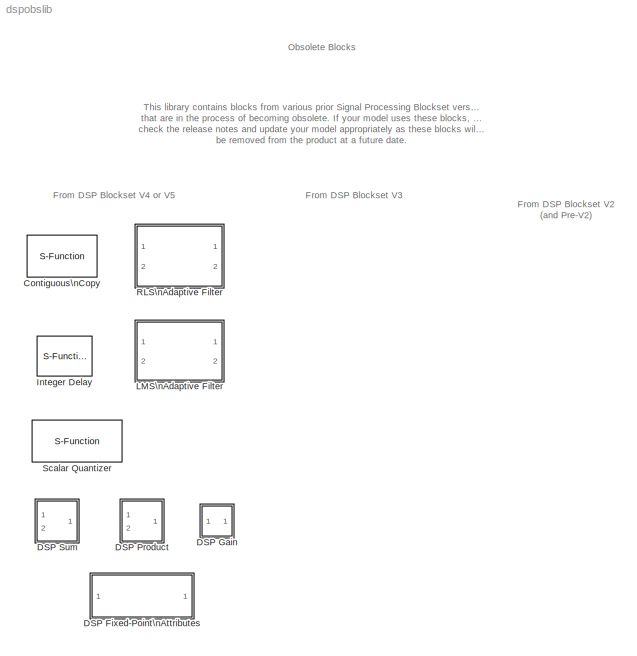
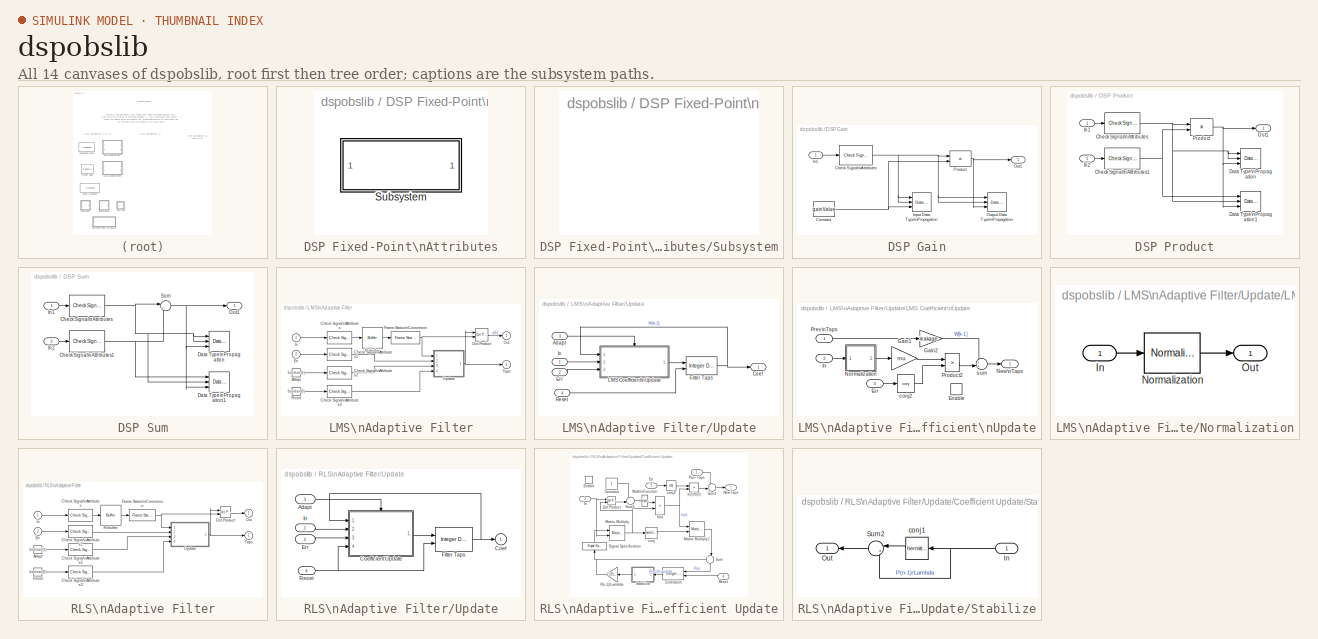
[diagram: thumbnail index - all 14 canvases of the model, root first then tree order]
MODEL dspobslib
KIND library
BLOCK [S-Function] Contiguous\nCopy
  FunctionName = sdspcontig2
  MaskDescription = Create a contiguous copy of input data.  For use with blocks that only accept contiguous data during simulation or code generation.
  MaskDisplay = disp('Contiguous\\nCopy');
  MaskHelp = web(dspbhelp);
  MaskIconFrame = on
  MaskIconOpaque = on
  MaskIconRotate = none
  MaskIconUnits = autoscale
  MaskType = Contiguous Copy
  Ports = [1, 1]
BLOCK [SubSystem] DSP Fixed-Point\nAttributes
  CopyFcn = dspFixptManager('addController');\n
  DeleteFcn = dspFixptManager('removeController');
  MaskCallbackString = dspblkFPA('out');|||dspblkFPA('acc');|||dspblkFPA('po');|||dspblkFPA('mem');|||dspblkFPA('misc');||
  MaskDescription = Sets fixed-point parameters on a model-wide (if at root level) or subsystem-wide basis.  Blocks that have 'Inherit from master dialog' will use the parameters specified here unless overridden at a lower level.
  MaskDisplay = disp('DSP Fixed-Point\\nAttributes','horizontalalign','center')\n
  MaskEnableString = on,on,on,on,on,on,on,on,on,on,on,on,on,on,on
  MaskHelp = web(dspbhelp);
  MaskIconFrame = off
  MaskIconOpaque = on
  MaskIconRotate = none
  MaskIconUnits = autoscale
  MaskPromptString = Where from (out)?|Word length:|Fraction length:|Where from (acc)?|Word length:|Fraction length:|Where from (po)?|Word length:|Fraction length:|Where from (mem)?|Word length:|Fraction length:|Where from (misc)?|Round integer calculations towards:|Saturate on integer overflow
  MaskSelfModifiable = on
  MaskStyleString = popup(Local|Inherit),edit,edit,popup(Local|Inherit),edit,edit,popup(Local|Inherit),edit,edit,popup(Local|Inherit),edit,edit,popup(Local|Inherit),popup(Floor|Nearest),checkbox
  MaskTabNameString = ,,,,,,,,,,,,,,
  MaskToolTipString = on,on,on,on,on,on,on,on,on,on,on,on,on,on,on
  MaskTunableValueString = off,off,off,off,off,off,off,off,off,off,off,off,off,off,off
  MaskType = DSP Fixed-Point Attributes
  MaskValueString = Inherit|16|15|Inherit|32|30|Inherit|32|30|Inherit|16|15|Inherit|Floor|off
  MaskVarAliasString = ,,,,,,,,,,,,,,
  MaskVariables = outputSource=@1;outputWordLength=@2;outputFracLength=@3;accumSource=@4;accumWordLength=@5;accumFracLength=@6;prodOutputSource=@7;prodOutputWordLength=@8;prodOutputFracLength=@9;memorySource=@10;memoryWordLength=@11;memoryFracLength=@12;miscSource=@13;roundingMode=@14;overflowMode=@15;
  MaskVisibilityString = on,off,off,on,off,off,on,off,off,on,off,off,on,off,off
  ModelCloseFcn = dspFixptManager('closeModel');\n
  NameChangeFcn = dspFixptManager('changeName');\n
  OpenFcn = dspFixptManager('openUI');
  Ports = []
  TreatAsAtomicUnit = off
  UndoDeleteFcn = dspFixptManager('addController');\n
BLOCK [SubSystem] DSP Fixed-Point\nAttributes/Subsystem
  MaskDisplay = disp(' ')
  MaskIconFrame = off
  MaskIconOpaque = on
  MaskIconRotate = none
  MaskIconUnits = autoscale
  Ports = []
  TreatAsAtomicUnit = off
BLOCK [SubSystem] DSP Gain
  MaskCallbackString = |dspblkdspgain;|dspblkdspgain;|dspblkdspgain;|||dspblkdspgain;|||dspblkdspgain;|dspblkdspgain;
  MaskDescription = Apply element-wise gain to input. Any fixed-point settings are ignored for floating-point inputs.
  MaskDisplay = text(0.309,0.5,iconStr,'horizontalalignment','center')\nplot([0,0],[0,1]);\nplot([0,1],[0,0.5]);\nplot([0,1],[1,0.5]);\n
  MaskEnableString = on,on,on,on,on,on,on,on,on,on,on
  MaskHelp = web(dspbhelp);
  MaskIconFrame = off
  MaskIconOpaque = on
  MaskIconRotate = port
  MaskIconUnits = normalized
  MaskInitialization = iconStr = dspblkdspgain('icon');\ndspblkdspgain('init');
  MaskPromptString = Gain value:|------- Show additional parameters --------|Allow overrides from DSP Fixed-Point Attributes blocks|Fixed-point gain attributes:|Gain word length:|Gain fraction length:|Fixed-point output attributes:|Output word length:|Output fraction length:|Round integer calculations toward:|Saturate on integer overflow
  MaskSelfModifiable = on
  MaskStyleString = edit,checkbox,checkbox,popup(Same as input|User-defined),edit,edit,popup(Same as input|User-defined),edit,edit,popup(Floor|Nearest),checkbox
  MaskTabNameString = ,,,,,,,,,,
  MaskToolTipString = on,on,on,on,on,on,on,on,on,on,on
  MaskTunableValueString = off,off,off,off,off,off,off,off,off,off,off
  MaskType = DSP Gain
  MaskValueString = 1|off|on|Same as input|16|15|Same as input|32|30|Floor|off
  MaskVarAliasString = ,,,,,,outputMode,outputWordLength,outputFracLength,,
  MaskVariables = gainValue=@1;additionalParams=@2;allowOverrides=@3;gainMode=@4;gainWordLength=@5;gainFracLength=@6;prodOutputMode=@7;prodOutputWordLength=@8;prodOutputFracLength=@9;roundingMode=@10;overflowMode=@11;
  MaskVisibilityString = on,on,off,off,off,off,off,off,off,off,off
  Ports = [1, 1]
  TreatAsAtomicUnit = off
BLOCK [Reference] DSP Gain/Check Signal\nAttributes  REF=dspsigattribs/Check Signal\nAttributes
  Complexity = Ignore
  DatatypeCheckMethod = Is...
  DatatypeGeneral = Boolean
  Dimensions = 1-D
  DimsCheckMethod = Ignore
  DtypeFixedSpecific = Any fixed-point
  DtypeFloatSpecific = Any floating-point
  DtypeIntSpecific = Any integer
  Frame = Ignore
  Ports = [1, 1]
  SampleMode = Ignore
  SigAttribCheckMethod = Matches attributes exactly
  SourceBlock = dspsigattribs/Check Signal\nAttributes
  SourceType = Check Signal Attributes
BLOCK [Constant] DSP Gain/Constant
  OutDataTypeMode = Inherit via back propagation
  Value = gainValue
  VectorParams1D = off
BLOCK [Inport] DSP Gain/In1
  IconDisplay = Port number
BLOCK [Reference] DSP Gain/Input Data Type\nPropagation  REF=simulink/Signal\nAttributes/Data Type\nPropagation
  BiasAdd = 0
  BiasBase = Bias1
  BiasMult = 0
  IfRefDouble = double
  IfRefSingle = single
  IsSigned = IsSigned1 or IsSigned2
  NumBitsAdd = 0
  NumBitsAllowFinal = 1:128
  NumBitsBase = NumBits1
  NumBitsMult = 1
  Ports = [3]
  PropDataType = sfix(16)
  PropDataTypeMode = Inherit via propagation rule
  PropScaling = 2^-10
  PropScalingMode = Inherit via propagation rule
  SlopeAdd = 0
  SlopeBase = Slope1
  SlopeMult = 1
  SourceBlock = simulink/Signal\nAttributes/Data Type\nPropagation
  SourceType = Data Type Propagation
  ValuesUsedBestPrec = [5 -7]
BLOCK [Outport] DSP Gain/Out1
  BusOutputAsStruct = off
  IconDisplay = Port number
BLOCK [Reference] DSP Gain/Output Data Type\nPropagation  REF=simulink/Signal\nAttributes/Data Type\nPropagation
  BiasAdd = 0
  BiasBase = Bias1
  BiasMult = 0
  IfRefDouble = double
  IfRefSingle = single
  IsSigned = IsSigned1 or IsSigned2
  NumBitsAdd = 0
  NumBitsAllowFinal = 1:128
  NumBitsBase = NumBits1
  NumBitsMult = 1
  Ports = [3]
  PropDataType = sfix(16)
  PropDataTypeMode = Inherit via propagation rule
  PropScaling = 2^-10
  PropScalingMode = Inherit via propagation rule
  SlopeAdd = 0
  SlopeBase = Slope1
  SlopeMult = 1
  SourceBlock = simulink/Signal\nAttributes/Data Type\nPropagation
  SourceType = Data Type Propagation
  ValuesUsedBestPrec = [5 -7]
BLOCK [Product] DSP Gain/Product
  InputSameDT = off
  OutDataTypeMode = Inherit via back propagation
  Ports = [2, 1]
  RndMeth = Floor
  SaturateOnIntegerOverflow = off
BLOCK [SubSystem] DSP Product
  MaskCallbackString = dspblksummult('Product');|dspblksummult('Product');|||dspblksummult('Product');|dspblksummult('Product');
  MaskDescription = Perform element-wise multiplication on two inputs. Any fixed-point settings are ignored for floating-point inputs.
  MaskDisplay = plot((0.5+cos([0:3:360]*pi/180)/3),(0.5+sin([0:3:360]*pi/180)/3))\nplot([.35,.65],[.35,.65])\nplot([.65,.35],[.35,.65])
  MaskEnableString = on,on,on,on,on,on
  MaskHelp = web(dspbhelp);
  MaskIconFrame = on
  MaskIconOpaque = on
  MaskIconRotate = none
  MaskIconUnits = normalized
  MaskInitialization = dspblksummult('init','Product')\ndspblksummult('update','Product')
  MaskPromptString = Allow overrides from DSP Fixed-Point Attributes blocks|Fixed-point output attributes:|Output word length:|Output fraction length:|Round integer calculations toward:|Saturate on integer overflow
  MaskSelfModifiable = on
  MaskStyleString = checkbox,popup(Same as first input|User-defined),edit,edit,popup(Floor|Nearest),checkbox
  MaskTabNameString = ,,,,,
  MaskToolTipString = on,on,on,on,on,on
  MaskTunableValueString = off,off,off,off,off,off
  MaskType = DSP Product
  MaskValueString = on|Same as first input|32|30|Floor|off
  MaskVarAliasString = ,outputMode,outputWordLength,outputFracLength,,
  MaskVariables = allowOverrides=@1;prodOutputMode=@2;prodOutputWordLength=@3;prodOutputFracLength=@4;roundingMode=@5;overflowMode=@6;
  MaskVisibilityString = on,on,off,off,on,on
  Ports = [2, 1]
  TreatAsAtomicUnit = off
BLOCK [Reference] DSP Product/Check Signal\nAttributes  REF=dspsigattribs/Check Signal\nAttributes
  Complexity = Ignore
  DatatypeCheckMethod = Is...
  DatatypeGeneral = Boolean
  Dimensions = 1-D
  DimsCheckMethod = Ignore
  DtypeFixedSpecific = Any fixed-point
  DtypeFloatSpecific = Any floating-point
  DtypeIntSpecific = Any integer
  Frame = Ignore
  Ports = [1, 1]
  SampleMode = Ignore
  SigAttribCheckMethod = Matches attributes exactly
  SourceBlock = dspsigattribs/Check Signal\nAttributes
  SourceType = Check Signal Attributes
BLOCK [Reference] DSP Product/Check Signal\nAttributes1  REF=dspsigattribs/Check Signal\nAttributes
  Complexity = Ignore
  DatatypeCheckMethod = Is...
  DatatypeGeneral = Boolean
  Dimensions = 1-D
  DimsCheckMethod = Ignore
  DtypeFixedSpecific = Any fixed-point
  DtypeFloatSpecific = Any floating-point
  DtypeIntSpecific = Any integer
  Frame = Ignore
  Ports = [1, 1]
  SampleMode = Ignore
  SigAttribCheckMethod = Matches attributes exactly
  SourceBlock = dspsigattribs/Check Signal\nAttributes
  SourceType = Check Signal Attributes
BLOCK [Reference] DSP Product/Data Type\nPropagation  REF=simulink/Signal\nAttributes/Data Type\nPropagation
  BiasAdd = 0
  BiasBase = Bias1
  BiasMult = 0
  IfRefDouble = double
  IfRefSingle = single
  IsSigned = IsSigned1 or IsSigned2
  NumBitsAdd = 0
  NumBitsAllowFinal = 1:128
  NumBitsBase = NumBits1
  NumBitsMult = 1
  Ports = [3]
  PropDataType = sfix(16)
  PropDataTypeMode = Inherit via propagation rule
  PropScaling = 2^-10
  PropScalingMode = Inherit via propagation rule
  SlopeAdd = 0
  SlopeBase = Slope1
  SlopeMult = 1
  SourceBlock = simulink/Signal\nAttributes/Data Type\nPropagation
  SourceType = Data Type Propagation
  ValuesUsedBestPrec = [5 -7]
BLOCK [Reference] DSP Product/Data Type\nPropagation1  REF=simulink/Signal\nAttributes/Data Type\nPropagation
  BiasAdd = 0
  BiasBase = Bias2
  BiasMult = 0
  IfRefDouble = double
  IfRefSingle = single
  IsSigned = IsSigned1 or IsSigned2
  NumBitsAdd = 0
  NumBitsAllowFinal = 1:128
  NumBitsBase = NumBits2
  NumBitsMult = 1
  Ports = [3]
  PropDataType = sfix(16)
  PropDataTypeMode = Inherit via propagation rule
  PropScaling = 2^-10
  PropScalingMode = Inherit via propagation rule
  SlopeAdd = 0
  SlopeBase = Slope2
  SlopeMult = 1
  SourceBlock = simulink/Signal\nAttributes/Data Type\nPropagation
  SourceType = Data Type Propagation
  ValuesUsedBestPrec = [5 -7]
BLOCK [Inport] DSP Product/In1
  IconDisplay = Port number
BLOCK [Inport] DSP Product/In2
  IconDisplay = Port number
  Port = 2
BLOCK [Outport] DSP Product/Out1
  BusOutputAsStruct = off
  IconDisplay = Port number
BLOCK [Product] DSP Product/Product
  InputSameDT = off
  OutDataTypeMode = Inherit via back propagation
  Ports = [2, 1]
  RndMeth = Floor
  SaturateOnIntegerOverflow = off
BLOCK [SubSystem] DSP Sum
  MaskCallbackString = dspblksummult('Sum');|dspblksummult('Sum');|||dspblksummult('Sum');|dspblksummult('Sum');
  MaskDescription = Sum two inputs. Any fixed-point settings are ignored for floating-point inputs.
  MaskDisplay = plot((0.5+cos([0:3:360]*pi/180)/3),(0.5+sin([0:3:360]*pi/180)/3))\nplot([.5,.5],[.35,.65])\nplot([.35,.65],[.5,.5])
  MaskEnableString = on,on,on,on,on,on
  MaskHelp = web(dspbhelp);
  MaskIconFrame = on
  MaskIconOpaque = on
  MaskIconRotate = none
  MaskIconUnits = normalized
  MaskInitialization = dspblksummult('init','Sum')\ndspblksummult('update','Sum')
  MaskPromptString = Allow overrides from DSP Fixed-Point Attributes blocks|Fixed-point output attributes:|Output word length:|Output fraction length:|Round integer calculations toward:|Saturate on integer overflow
  MaskSelfModifiable = on
  MaskStyleString = checkbox,popup(Same as first input|User-defined),edit,edit,popup(Floor|Nearest),checkbox
  MaskTabNameString = ,,,,,
  MaskToolTipString = on,on,on,on,on,on
  MaskTunableValueString = off,off,off,off,off,off
  MaskType = DSP Sum
  MaskValueString = on|Same as first input|32|30|Floor|off
  MaskVarAliasString = ,outputMode,outputWordLength,outputFracLength,,
  MaskVariables = allowOverrides=@1;accumMode=@2;accumWordLength=@3;accumFracLength=@4;roundingMode=@5;overflowMode=@6;
  MaskVisibilityString = on,on,off,off,on,on
  Ports = [2, 1]
  TreatAsAtomicUnit = off
BLOCK [Reference] DSP Sum/Check Signal\nAttributes  REF=dspsigattribs/Check Signal\nAttributes
  Complexity = Ignore
  DatatypeCheckMethod = Is...
  DatatypeGeneral = Boolean
  Dimensions = 1-D
  DimsCheckMethod = Ignore
  DtypeFixedSpecific = Any fixed-point
  DtypeFloatSpecific = Any floating-point
  DtypeIntSpecific = Any integer
  Frame = Ignore
  Ports = [1, 1]
  SampleMode = Ignore
  SigAttribCheckMethod = Matches attributes exactly
  SourceBlock = dspsigattribs/Check Signal\nAttributes
  SourceType = Check Signal Attributes
BLOCK [Reference] DSP Sum/Check Signal\nAttributes1  REF=dspsigattribs/Check Signal\nAttributes
  Complexity = Ignore
  DatatypeCheckMethod = Is...
  DatatypeGeneral = Boolean
  Dimensions = 1-D
  DimsCheckMethod = Ignore
  DtypeFixedSpecific = Any fixed-point
  DtypeFloatSpecific = Any floating-point
  DtypeIntSpecific = Any integer
  Frame = Ignore
  Ports = [1, 1]
  SampleMode = Ignore
  SigAttribCheckMethod = Matches attributes exactly
  SourceBlock = dspsigattribs/Check Signal\nAttributes
  SourceType = Check Signal Attributes
BLOCK [Reference] DSP Sum/Data Type\nPropagation  REF=simulink/Signal\nAttributes/Data Type\nPropagation
  BiasAdd = 0
  BiasBase = Bias1
  BiasMult = 0
  IfRefDouble = double
  IfRefSingle = single
  IsSigned = IsSigned1 or IsSigned2
  NumBitsAdd = 0
  NumBitsAllowFinal = 1:128
  NumBitsBase = NumBits1
  NumBitsMult = 1
  Ports = [3]
  PropDataType = sfix(16)
  PropDataTypeMode = Inherit via propagation rule
  PropScaling = 2^-10
  PropScalingMode = Inherit via propagation rule
  SlopeAdd = 0
  SlopeBase = Slope1
  SlopeMult = 1
  SourceBlock = simulink/Signal\nAttributes/Data Type\nPropagation
  SourceType = Data Type Propagation
  ValuesUsedBestPrec = [5 -7]
BLOCK [Reference] DSP Sum/Data Type\nPropagation1  REF=simulink/Signal\nAttributes/Data Type\nPropagation
  BiasAdd = 0
  BiasBase = Bias2
  BiasMult = 0
  IfRefDouble = double
  IfRefSingle = single
  IsSigned = IsSigned1 or IsSigned2
  NumBitsAdd = 0
  NumBitsAllowFinal = 1:128
  NumBitsBase = NumBits2
  NumBitsMult = 1
  Ports = [3]
  PropDataType = sfix(16)
  PropDataTypeMode = Inherit via propagation rule
  PropScaling = 2^-10
  PropScalingMode = Inherit via propagation rule
  SlopeAdd = 0
  SlopeBase = Slope2
  SlopeMult = 1
  SourceBlock = simulink/Signal\nAttributes/Data Type\nPropagation
  SourceType = Data Type Propagation
  ValuesUsedBestPrec = [5 -7]
BLOCK [Inport] DSP Sum/In1
  IconDisplay = Port number
BLOCK [Inport] DSP Sum/In2
  IconDisplay = Port number
  Port = 2
BLOCK [Outport] DSP Sum/Out1
  BusOutputAsStruct = off
  IconDisplay = Port number
BLOCK [Sum] DSP Sum/Sum
  IconShape = round
  InputSameDT = off
  Inputs = |++
  OutDataTypeMode = Inherit via back propagation
  Ports = [2, 1]
  SaturateOnIntegerOverflow = off
BLOCK [S-Function] Integer Delay
  FunctionName = sdspdly2
  MaskCallbackString = ||
  MaskDescription = Delay discrete-time input by a fixed integer number of sample periods.
  MaskDisplay = text(0.42-dx, 0.4, 'z'); text(0.5-dx, 0.6, str);\nport_label('input',s.i1,s.i1s);\nport_label('input',s.i2,s.i2s);\n
  MaskEnableString = on,on,on
  MaskHelp = web(dspbhelp);
  MaskIconFrame = on
  MaskIconOpaque = on
  MaskIconRotate = none
  MaskIconUnits = normalized
  MaskInitialization = str = dspblkdly2('icon',&1,delay);\ndx = 0.01*length(str);\nreset = reset_popup-1;\nif (reset == 0)\n	s.i1 = 1; s.i1s = '';\n	s.i2 = 1; s.i2s = '';\nelse\n	s.i1 = 1; s.i1s = 'In';\n	s.i2 = 2; s.i2s = 'Rst';\nend\n
  MaskPromptString = Delay (samples):|Initial conditions:|Reset port:
  MaskSelfModifiable = on
  MaskStyleString = edit,edit,popup(None|Rising edge|Falling edge|Either edge|Non-zero sample)
  MaskTabNameString = ,,
  MaskToolTipString = on,on,on
  MaskTunableValueString = off,off,off
  MaskType = Integer Delay
  MaskValueString = 1|0|None
  MaskVarAliasString = ,,
  MaskVariables = delay=@1;ic=@2;reset_popup=@3;
  MaskVisibilityString = on,on,on
  Parameters = delay,ic,reset
  Ports = [1, 1]
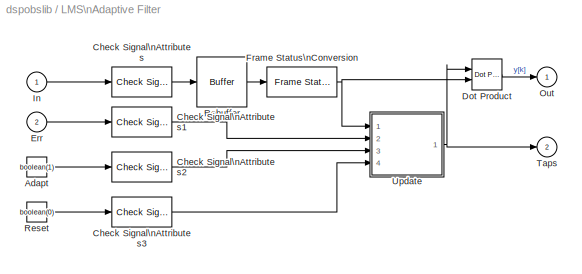
BLOCK [SubSystem] LMS\nAdaptive Filter
  MaskCallbackString = ||||||
  MaskDescription = Least mean-square (LMS) algorithm for adaptive FIR filtering of input signal.  Energy normalization may optionally be disabled.\n\nIf 'Adapt input' is checked and the Adapt signal is zero, the algorithm temporarily disables adaptation of the filter coefficients.  A non-zero signal enables filter adaptation.\n\nIf the 'Reset input' is enabled and the Reset signal transitions appropriately, the filt...<+54ch>
  MaskDisplay = disp(s);
  MaskEnableString = on,on,on,on,on,on,on
  MaskHelp = web(dspbhelp);
  MaskIconFrame = on
  MaskIconOpaque = off
  MaskIconRotate = none
  MaskIconUnits = autoscale
  MaskInitialization = if normalized, s='nLMS'; else s='LMS'; end\ndspblkadpt('init');\n
  MaskPromptString = FIR filter length:|Step-size, mu:|Initial value of filter taps:|Leakage factor (0 to 1):|Use normalization|Adapt input|Reset input:
  MaskSelfModifiable = on
  MaskStyleString = edit,edit,edit,edit,checkbox,checkbox,popup(None|Rising edge|Falling edge|Either edge|Non-zero sample)
  MaskTabNameString = ,,,,,,
  MaskToolTipString = on,on,on,on,on,on,on
  MaskTunableValueString = off,on,off,on,off,off,off
  MaskType = LMS Adaptive Filter
  MaskValueString = 32|.65|0.0|1.0|on|off|None
  MaskVarAliasString = ,,,,,,
  MaskVariables = n=@1;mu=@2;ic=@3;leakage=@4;normalized=@5;Adapt=@6;RstPort=@7;
  MaskVisibilityString = on,on,on,on,on,on,on
  Ports = [2, 2]
  TreatAsAtomicUnit = off
BLOCK [Constant] LMS\nAdaptive Filter/Adapt
  Value = boolean(1)
BLOCK [Reference] LMS\nAdaptive Filter/Check Signal\nAttributes  REF=dspsigattribs/Check Signal\nAttributes
  Complexity = Ignore
  DatatypeCheckMethod = Ignore
  DatatypeGeneral = Boolean
  Dimensions = Scalar (1-D or 2-D)
  DimsCheckMethod = Is...
  DtypeFixedSpecific = Any fixed-point
  DtypeFloatSpecific = Any floating-point
  DtypeIntSpecific = Any integer
  Frame = Sample-based
  Ports = [1, 1]
  SampleMode = Ignore
  SigAttribCheckMethod = Does not match attributes exactly
  SourceBlock = dspsigattribs/Check Signal\nAttributes
  SourceType = Check Signal Attributes
BLOCK [Reference] LMS\nAdaptive Filter/Check Signal\nAttributes1  REF=dspsigattribs/Check Signal\nAttributes
  Complexity = Ignore
  DatatypeCheckMethod = Ignore
  DatatypeGeneral = Boolean
  Dimensions = Scalar (1-D or 2-D)
  DimsCheckMethod = Is...
  DtypeFixedSpecific = Any fixed-point
  DtypeFloatSpecific = Any floating-point
  DtypeIntSpecific = Any integer
  Frame = Sample-based
  Ports = [1, 1]
  SampleMode = Ignore
  SigAttribCheckMethod = Does not match attributes exactly
  SourceBlock = dspsigattribs/Check Signal\nAttributes
  SourceType = Check Signal Attributes
BLOCK [Reference] LMS\nAdaptive Filter/Check Signal\nAttributes2  REF=dspsigattribs/Check Signal\nAttributes
  Complexity = Ignore
  DatatypeCheckMethod = Ignore
  DatatypeGeneral = Boolean
  Dimensions = Scalar (1-D or 2-D)
  DimsCheckMethod = Is...
  DtypeFixedSpecific = Any fixed-point
  DtypeFloatSpecific = Any floating-point
  DtypeIntSpecific = Any integer
  Frame = Sample-based
  Ports = [1, 1]
  SampleMode = Ignore
  SigAttribCheckMethod = Does not match attributes exactly
  SourceBlock = dspsigattribs/Check Signal\nAttributes
  SourceType = Check Signal Attributes
BLOCK [Reference] LMS\nAdaptive Filter/Check Signal\nAttributes3  REF=dspsigattribs/Check Signal\nAttributes
  Complexity = Ignore
  DatatypeCheckMethod = Ignore
  DatatypeGeneral = Boolean
  Dimensions = Scalar (1-D or 2-D)
  DimsCheckMethod = Is...
  DtypeFixedSpecific = Any fixed-point
  DtypeFloatSpecific = Any floating-point
  DtypeIntSpecific = Any integer
  Frame = Sample-based
  Ports = [1, 1]
  SampleMode = Ignore
  SigAttribCheckMethod = Does not match attributes exactly
  SourceBlock = dspsigattribs/Check Signal\nAttributes
  SourceType = Check Signal Attributes
BLOCK [Reference] LMS\nAdaptive Filter/Dot Product  REF=simulink/Math\nOperations/Dot Product
  Ports = [2, 1]
  SourceBlock = simulink/Math\nOperations/Dot Product
  SourceType = Dot Product
BLOCK [Inport] LMS\nAdaptive Filter/Err
  IconDisplay = Port number
  Port = 2
BLOCK [Reference] LMS\nAdaptive Filter/Frame Status\nConversion  REF=dspsigattribs/Frame Status\nConversion
  Ports = [1, 1]
  SourceBlock = dspsigattribs/Frame Status\nConversion
  SourceType = Frame Status Conversion
  growRefPort = off
  outframe = Sample-based
BLOCK [Inport] LMS\nAdaptive Filter/In
  IconDisplay = Port number
BLOCK [Outport] LMS\nAdaptive Filter/Out
  BusOutputAsStruct = off
  IconDisplay = Port number
  InitialOutput = 0
BLOCK [Reference] LMS\nAdaptive Filter/Rebuffer  REF=dspbuff3/Buffer
  N = n
  Ports = [1, 1]
  SourceBlock = dspbuff3/Buffer
  SourceType = Buffer
  V = n-1
  ic = 0
BLOCK [Constant] LMS\nAdaptive Filter/Reset
  Value = boolean(0)
BLOCK [Outport] LMS\nAdaptive Filter/Taps
  BusOutputAsStruct = off
  IconDisplay = Port number
  InitialOutput = 0
  Port = 2
BLOCK [SubSystem] LMS\nAdaptive Filter/Update
  Ports = [4, 1]
  TreatAsAtomicUnit = off
BLOCK [Inport] LMS\nAdaptive Filter/Update/Adapt
  IconDisplay = Port number
  Port = 3
BLOCK [Outport] LMS\nAdaptive Filter/Update/Coef
  BusOutputAsStruct = off
  IconDisplay = Port number
  InitialOutput = 0
BLOCK [Inport] LMS\nAdaptive Filter/Update/Err
  IconDisplay = Port number
  Port = 2
BLOCK [Reference] LMS\nAdaptive Filter/Update/Filter Taps  REF=dspobslib/Integer Delay
  Ports = [2, 1]
  SourceBlock = dspobslib/Integer Delay
  SourceType = Integer Delay
  delay = 1
  ic = ic
  reset_popup = Non-zero sample
BLOCK [Inport] LMS\nAdaptive Filter/Update/In
  IconDisplay = Port number
BLOCK [SubSystem] LMS\nAdaptive Filter/Update/LMS Coefficient\nUpdate
  Ports = [3, 1, 1]
  TreatAsAtomicUnit = on
BLOCK [EnablePort] LMS\nAdaptive Filter/Update/LMS Coefficient\nUpdate/Enable
  Ports = []
  ZeroCross = off
BLOCK [Inport] LMS\nAdaptive Filter/Update/LMS Coefficient\nUpdate/Err
  IconDisplay = Port number
  Port = 3
BLOCK [Gain] LMS\nAdaptive Filter/Update/LMS Coefficient\nUpdate/Gain1
  Gain = mu
BLOCK [Gain] LMS\nAdaptive Filter/Update/LMS Coefficient\nUpdate/Gain2
  Gain = leakage
BLOCK [Inport] LMS\nAdaptive Filter/Update/LMS Coefficient\nUpdate/In
  IconDisplay = Port number
  Port = 2
BLOCK [Outport] LMS\nAdaptive Filter/Update/LMS Coefficient\nUpdate/New\nTaps
  BusOutputAsStruct = off
  IconDisplay = Port number
  InitialOutput = ic
BLOCK [SubSystem] LMS\nAdaptive Filter/Update/LMS Coefficient\nUpdate/Normalization
  MaskCallbackString = |||
  MaskDescription = Configurable subsystem holding blocks which may be replaced by virtual short-circuits (muxes) when not needed.
  MaskEnableString = on,on,on,on
  MaskHelp = \n
  MaskIconFrame = on
  MaskIconOpaque = on
  MaskIconRotate = none
  MaskIconUnits = autoscale
  MaskInitialization = opts.name = oname; opts.src = osrc; opts.args = oargs;\ndspskipblk(gcb,opts,replace);\n
  MaskPromptString = Relative name of blocks to replace:|Simulink path to each source block:|Parameter/value pairs to each block:|Replace with short-circuit:
  MaskSelfModifiable = on
  MaskStyleString = edit,edit,edit,edit
  MaskTabNameString = ,,,
  MaskToolTipString = on,on,on,on
  MaskTunableValueString = off,off,off,off
  MaskType = Replaceable Contents
  MaskValueString = Normalization|dspmathops/Normalization|{'NormType','Squared 2-norm','Bias','1e-10'}|~normalized
  MaskVarAliasString = ,,,
  MaskVariables = oname=&1;osrc=&2;oargs=@3;replace=@4;
  MaskVisibilityString = on,on,on,on
  Ports = [1, 1]
  TreatAsAtomicUnit = off
BLOCK [Inport] LMS\nAdaptive Filter/Update/LMS Coefficient\nUpdate/Normalization/In
  IconDisplay = Port number
BLOCK [Reference] LMS\nAdaptive Filter/Update/LMS Coefficient\nUpdate/Normalization/Normalization  REF=dspmathops/Normalization
  Bias = 1e-10
  NormType = Squared 2-norm
  Ports = [1, 1]
  SourceBlock = dspmathops/Normalization
  SourceType = Normalization
BLOCK [Outport] LMS\nAdaptive Filter/Update/LMS Coefficient\nUpdate/Normalization/Out
  BusOutputAsStruct = off
  IconDisplay = Port number
  InitialOutput = 0
BLOCK [Inport] LMS\nAdaptive Filter/Update/LMS Coefficient\nUpdate/Prev\nTaps
  IconDisplay = Port number
BLOCK [Product] LMS\nAdaptive Filter/Update/LMS Coefficient\nUpdate/Product2
  Ports = [2, 1]
  RndMeth = Floor
BLOCK [Math] LMS\nAdaptive Filter/Update/LMS Coefficient\nUpdate/conj2
  Operator = conj
  Ports = [1, 1]
BLOCK [Sum] LMS\nAdaptive Filter/Update/LMS Coefficient\nUpdate/sum
  IconShape = round
  Inputs = ++|
  Ports = [2, 1]
BLOCK [Inport] LMS\nAdaptive Filter/Update/Reset
  IconDisplay = Port number
  Port = 4
BLOCK [SubSystem] RLS\nAdaptive Filter
  MaskCallbackString = |||||
  MaskDescription = Exponentially weighted recursive least-squares (RLS) algorithm for adaptive FIR filtering of input signal. \n\nIf 'Adapt input' is checked and the Adapt signal is zero, the algorithm temporarily disables adaptation of the filter coefficients.  A non-zero signal enables filter adaptation.\n\nIf the 'Reset input' is enabled and the Reset signal transitions appropriately, the filter coefficients are ...<+34ch>
  MaskDisplay = disp('RLS')
  MaskEnableString = on,on,on,on,on,on
  MaskHelp = web(dspbhelp);
  MaskIconFrame = on
  MaskIconOpaque = off
  MaskIconRotate = none
  MaskIconUnits = autoscale
  MaskInitialization = dspblkadpt('init');\n
  MaskPromptString = FIR filter length:|Memory weighting factor (0 to 1):|Initial value of filter taps:|Initial input variance estimate:|Adapt input|Reset input:
  MaskSelfModifiable = on
  MaskStyleString = edit,edit,edit,edit,checkbox,popup(None|Rising edge|Falling edge|Either edge|Non-zero sample)
  MaskTabNameString = ,,,,,
  MaskToolTipString = on,on,on,on,on,on
  MaskTunableValueString = off,on,off,off,off,off
  MaskType = RLS Adaptive Filter
  MaskValueString = 32|1.0|0.0|0.1|off|None
  MaskVarAliasString = ,,,,,
  MaskVariables = Ntaps=@1;Lambda=@2;ic=@3;phi0=@4;Adapt=@5;RstPort=@6;
  MaskVisibilityString = on,on,on,on,on,on
  Ports = [2, 2]
  TreatAsAtomicUnit = off
BLOCK [Constant] RLS\nAdaptive Filter/Adapt
  Value = boolean(1)
BLOCK [Reference] RLS\nAdaptive Filter/Check Signal\nAttributes  REF=dspsigattribs/Check Signal\nAttributes
  Complexity = Ignore
  DatatypeCheckMethod = Ignore
  DatatypeGeneral = Boolean
  Dimensions = Scalar (1-D or 2-D)
  DimsCheckMethod = Is...
  DtypeFixedSpecific = Any fixed-point
  DtypeFloatSpecific = Any floating-point
  DtypeIntSpecific = Any integer
  Frame = Sample-based
  Ports = [1, 1]
  SampleMode = Ignore
  SigAttribCheckMethod = Does not match attributes exactly
  SourceBlock = dspsigattribs/Check Signal\nAttributes
  SourceType = Check Signal Attributes
BLOCK [Reference] RLS\nAdaptive Filter/Check Signal\nAttributes1  REF=dspsigattribs/Check Signal\nAttributes
  Complexity = Ignore
  DatatypeCheckMethod = Ignore
  DatatypeGeneral = Boolean
  Dimensions = Scalar (1-D or 2-D)
  DimsCheckMethod = Is...
  DtypeFixedSpecific = Any fixed-point
  DtypeFloatSpecific = Any floating-point
  DtypeIntSpecific = Any integer
  Frame = Sample-based
  Ports = [1, 1]
  SampleMode = Ignore
  SigAttribCheckMethod = Does not match attributes exactly
  SourceBlock = dspsigattribs/Check Signal\nAttributes
  SourceType = Check Signal Attributes
BLOCK [Reference] RLS\nAdaptive Filter/Check Signal\nAttributes2  REF=dspsigattribs/Check Signal\nAttributes
  Complexity = Ignore
  DatatypeCheckMethod = Ignore
  DatatypeGeneral = Boolean
  Dimensions = Scalar (1-D or 2-D)
  DimsCheckMethod = Is...
  DtypeFixedSpecific = Any fixed-point
  DtypeFloatSpecific = Any floating-point
  DtypeIntSpecific = Any integer
  Frame = Sample-based
  Ports = [1, 1]
  SampleMode = Ignore
  SigAttribCheckMethod = Does not match attributes exactly
  SourceBlock = dspsigattribs/Check Signal\nAttributes
  SourceType = Check Signal Attributes
BLOCK [Reference] RLS\nAdaptive Filter/Check Signal\nAttributes3  REF=dspsigattribs/Check Signal\nAttributes
  Complexity = Ignore
  DatatypeCheckMethod = Ignore
  DatatypeGeneral = Boolean
  Dimensions = Scalar (1-D or 2-D)
  DimsCheckMethod = Is...
  DtypeFixedSpecific = Any fixed-point
  DtypeFloatSpecific = Any floating-point
  DtypeIntSpecific = Any integer
  Frame = Sample-based
  Ports = [1, 1]
  SampleMode = Ignore
  SigAttribCheckMethod = Does not match attributes exactly
  SourceBlock = dspsigattribs/Check Signal\nAttributes
  SourceType = Check Signal Attributes
BLOCK [Reference] RLS\nAdaptive Filter/Dot Product  REF=simulink/Math\nOperations/Dot Product
  Ports = [2, 1]
  SourceBlock = simulink/Math\nOperations/Dot Product
  SourceType = Dot Product
BLOCK [Inport] RLS\nAdaptive Filter/Err
  IconDisplay = Port number
  Port = 2
BLOCK [Reference] RLS\nAdaptive Filter/Frame Status\nConversion  REF=dspsigattribs/Frame Status\nConversion
  Ports = [1, 1]
  SourceBlock = dspsigattribs/Frame Status\nConversion
  SourceType = Frame Status Conversion
  growRefPort = off
  outframe = Sample-based
BLOCK [Inport] RLS\nAdaptive Filter/In
  IconDisplay = Port number
BLOCK [Outport] RLS\nAdaptive Filter/Out
  BusOutputAsStruct = off
  IconDisplay = Port number
  InitialOutput = 0
BLOCK [Reference] RLS\nAdaptive Filter/Rebuffer  REF=dspbuff3/Buffer
  N = Ntaps
  Ports = [1, 1]
  SourceBlock = dspbuff3/Buffer
  SourceType = Buffer
  V = Ntaps-1
  ic = 0
BLOCK [Constant] RLS\nAdaptive Filter/Reset
  Value = boolean(0)
BLOCK [Outport] RLS\nAdaptive Filter/Taps
  BusOutputAsStruct = off
  IconDisplay = Port number
  InitialOutput = 0
  Port = 2
BLOCK [SubSystem] RLS\nAdaptive Filter/Update
  Ports = [4, 1]
  TreatAsAtomicUnit = off
BLOCK [Inport] RLS\nAdaptive Filter/Update/Adapt
  IconDisplay = Port number
  Port = 3
BLOCK [Outport] RLS\nAdaptive Filter/Update/Coef
  BusOutputAsStruct = off
  IconDisplay = Port number
  InitialOutput = 0
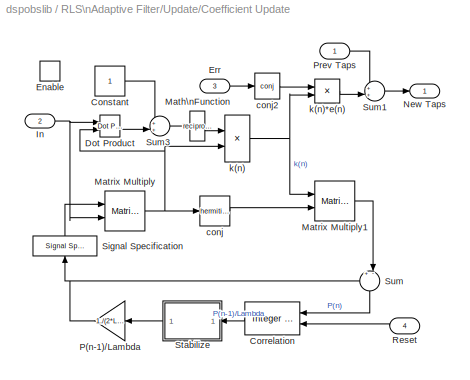
BLOCK [SubSystem] RLS\nAdaptive Filter/Update/Coefficient Update
  Ports = [4, 1, 1]
  TreatAsAtomicUnit = on
BLOCK [Constant] RLS\nAdaptive Filter/Update/Coefficient Update/Constant
  OutDataTypeMode = Inherit via back propagation
BLOCK [Reference] RLS\nAdaptive Filter/Update/Coefficient Update/Correlation  REF=dspobslib/Integer Delay
  Ports = [2, 1]
  SourceBlock = dspobslib/Integer Delay
  SourceType = Integer Delay
  delay = 1
  ic = eye(Ntaps)./phi0
  reset_popup = Either edge
BLOCK [Reference] RLS\nAdaptive Filter/Update/Coefficient Update/Dot Product  REF=simulink/Math\nOperations/Dot Product
  Ports = [2, 1]
  SourceBlock = simulink/Math\nOperations/Dot Product
  SourceType = Dot Product
BLOCK [EnablePort] RLS\nAdaptive Filter/Update/Coefficient Update/Enable
  Ports = []
  ZeroCross = off
BLOCK [Inport] RLS\nAdaptive Filter/Update/Coefficient Update/Err
  IconDisplay = Port number
  Port = 3
BLOCK [Inport] RLS\nAdaptive Filter/Update/Coefficient Update/In
  IconDisplay = Port number
  Port = 2
BLOCK [Math] RLS\nAdaptive Filter/Update/Coefficient Update/Math\nFunction
  Operator = reciprocal
  Ports = [1, 1]
BLOCK [Reference] RLS\nAdaptive Filter/Update/Coefficient Update/Matrix Multiply  REF=dspmtrx3/Matrix Multiply
  OptimizationLevel = None
  Ports = [2, 1]
  SourceBlock = dspmtrx3/Matrix Multiply
  SourceType = Matrix Multiply
  numInputPorts = 2
BLOCK [Reference] RLS\nAdaptive Filter/Update/Coefficient Update/Matrix Multiply1  REF=dspmtrx3/Matrix Multiply
  OptimizationLevel = None
  Ports = [2, 1]
  SourceBlock = dspmtrx3/Matrix Multiply
  SourceType = Matrix Multiply
  numInputPorts = 2
BLOCK [Outport] RLS\nAdaptive Filter/Update/Coefficient Update/New Taps
  BusOutputAsStruct = off
  IconDisplay = Port number
  InitialOutput = ic
BLOCK [Gain] RLS\nAdaptive Filter/Update/Coefficient Update/P(n-1)//Lambda
  Gain = 1./(2*Lambda)
BLOCK [Inport] RLS\nAdaptive Filter/Update/Coefficient Update/Prev Taps
  IconDisplay = Port number
BLOCK [Inport] RLS\nAdaptive Filter/Update/Coefficient Update/Reset
  IconDisplay = Port number
  Port = 4
BLOCK [Reference] RLS\nAdaptive Filter/Update/Coefficient Update/Signal Specification  REF=simulink/Signal\nAttributes/Signal Specification
  D = [Ntaps Ntaps]
  DataType = auto
  OutDataType = sfix(16)
  OutScaling = 2^0
  Ports = [1, 1]
  SamplingMode = auto
  SignalType = auto
  SourceBlock = simulink/Signal\nAttributes/Signal Specification
  SourceType = Signal Specification
  Ts = -1
BLOCK [SubSystem] RLS\nAdaptive Filter/Update/Coefficient Update/Stabilize
  Ports = [1, 1]
  TreatAsAtomicUnit = off
BLOCK [Inport] RLS\nAdaptive Filter/Update/Coefficient Update/Stabilize/In
  IconDisplay = Port number
BLOCK [Outport] RLS\nAdaptive Filter/Update/Coefficient Update/Stabilize/Out
  BusOutputAsStruct = off
  IconDisplay = Port number
BLOCK [Sum] RLS\nAdaptive Filter/Update/Coefficient Update/Stabilize/Sum2
  IconShape = round
  Inputs = |++
  Ports = [2, 1]
BLOCK [Math] RLS\nAdaptive Filter/Update/Coefficient Update/Stabilize/conj1
  Operator = hermitian
  Ports = [1, 1]
BLOCK [Sum] RLS\nAdaptive Filter/Update/Coefficient Update/Sum
  IconShape = round
  Inputs = +-|
  Ports = [2, 1]
BLOCK [Sum] RLS\nAdaptive Filter/Update/Coefficient Update/Sum1
  IconShape = round
  Inputs = ++|
  Ports = [2, 1]
BLOCK [Sum] RLS\nAdaptive Filter/Update/Coefficient Update/Sum3
  IconShape = round
  Inputs = ++|
  Ports = [2, 1]
BLOCK [Math] RLS\nAdaptive Filter/Update/Coefficient Update/conj
  Operator = hermitian
  Ports = [1, 1]
BLOCK [Math] RLS\nAdaptive Filter/Update/Coefficient Update/conj2
  Operator = conj
  Ports = [1, 1]
BLOCK [Product] RLS\nAdaptive Filter/Update/Coefficient Update/k(n)
  Ports = [2, 1]
  RndMeth = Floor
BLOCK [Product] RLS\nAdaptive Filter/Update/Coefficient Update/k(n)*e(n)
  Ports = [2, 1]
  RndMeth = Floor
BLOCK [Inport] RLS\nAdaptive Filter/Update/Err
  IconDisplay = Port number
  Port = 2
BLOCK [Reference] RLS\nAdaptive Filter/Update/Filter Taps  REF=dspobslib/Integer Delay
  Ports = [2, 1]
  SourceBlock = dspobslib/Integer Delay
  SourceType = Integer Delay
  delay = 1
  ic = ic
  reset_popup = Non-zero sample
BLOCK [Inport] RLS\nAdaptive Filter/Update/In
  IconDisplay = Port number
BLOCK [Inport] RLS\nAdaptive Filter/Update/Reset
  IconDisplay = Port number
  Port = 4
BLOCK [S-Function] Scalar Quantizer
  FunctionName = sdspsq
  MaskCallbackString = dspblksq|dspblksq||||||dspblksq|dspblksq||
  MaskDescription = The Scalar Quantizer block has three modes of operation.\nIn Encoder mode, the block maps each input value to a quantization region by comparing the input value to the user-specified quantizer boundary points. The block outputs the index of the associated region.\nIn Decoder mode, the block transforms the input index values into quantized output values, defined by the quantizer codebook.\nIn the E...<+639ch>
  MaskDisplay = disp(disp_str);\nport_label('input',si(1).port, si(1).txt);\nport_label('input',si(2).port, si(2).txt);\nport_label('input',si(3).port, si(3).txt);\nport_label('output',so(1).port, so(1).txt);\nport_label('output',so(2).port, so(2).txt);\nport_label('output',so(3).port, so(3).txt);\n
  MaskEnableString = on,on,on,off,on,on,off,off,on,off,off
  MaskHelp = web(dspbhelp);
  MaskIconFrame = on
  MaskIconOpaque = on
  MaskIconRotate = none
  MaskIconUnits = normalized
  MaskInitialization = [si,so,disp_str]=dspblksq('icon');
  MaskPromptString = Quantizer mode:|Source of quantizer parameters:|Boundary points:|Codebook:|Searching method:|Tie-breaking rule:|Output the quantization error|Action for out of range input:|--------------- Show additional parameters ---------------|Output index data type:|Output data type:
  MaskSelfModifiable = on
  MaskStyleString = popup(Encoder|Decoder|Encoder and decoder),popup(Specify via dialog|Input ports),edit,edit,popup(Linear|Binary),popup(Choose the lower index|Choose the higher index),checkbox,popup(Clip|Clip and warn|Error),checkbox,popup(int8|uint8|int16|uint16|int32|uint32),popup(double|single|int8|uint8|int16|uint16|int32|uint32)
  MaskTabNameString = ,,,,,,,,,,
  MaskToolTipString = on,on,on,on,on,on,on,on,on,on,on
  MaskTunableValueString = off,off,on,on,off,off,off,off,off,off,off
  MaskType = Scalar Quantizer
  MaskValueString = Encoder|Specify via dialog|[   0  1  2  3  4  5    6  7  8    9]|[0.0    1.5     2.5    3.5    4.5   5.5   6.5  7.5  8.5 ]|Binary|Choose the lower index|off|Clip and warn|off|int32|double
  MaskVarAliasString = ,,,,,,,,,,
  MaskVariables = Qmode=@1;QparamSource=@2;partitionUnBound=@3;codebook=@4;SearchMethod=@5;tieBreakRule=@6;outQError=@7;invalidin=@8;dtype=@9;idtype=@10;cwdtype=@11;
  MaskVisibilityString = on,on,on,off,on,on,off,off,on,off,off
  Parameters = Qmode,QparamSource,partitionUnBound,codebook,SearchMethod,tieBreakRule,outQError, invalidin, dtype, idtype, cwdtype,1,1
  Ports = [1, 1]
ANNOTATION (root): From DSP Blockset V2\n(and Pre-V2)
ANNOTATION (root): From DSP Blockset V3
ANNOTATION (root): From DSP Blockset V4 or V5
ANNOTATION (root): Obsolete Blocks
ANNOTATION (root): This library contains blocks from various prior Signal Processing Blockset versions\nthat are in the process of becoming obsolete. If your model uses these blocks, please\ncheck the release notes and update your model appropriately as these blocks will likely\nbe removed from the product at a future date.
NET DSP Gain/Check Signal\nAttributes:1 -> DSP Gain/Input Data Type\nPropagation:1, DSP Gain/Input Data Type\nPropagation:2, DSP Gain/Output Data Type\nPropagation:1, DSP Gain/Output Data Type\nPropagation:2, DSP Gain/Product:1
NET DSP Gain/Constant:1 -> DSP Gain/Input Data Type\nPropagation:3, DSP Gain/Product:2
LINE DSP Gain/In1:1 -> DSP Gain/Check Signal\nAttributes:1
NET DSP Gain/Product:1 -> DSP Gain/Out1:1, DSP Gain/Output Data Type\nPropagation:3
NET DSP Product/Check Signal\nAttributes1:1 -> DSP Product/Data Type\nPropagation1:1, DSP Product/Product:2
NET DSP Product/Check Signal\nAttributes:1 -> DSP Product/Data Type\nPropagation1:2, DSP Product/Data Type\nPropagation:1, DSP Product/Data Type\nPropagation:2, DSP Product/Product:1
LINE DSP Product/In1:1 -> DSP Product/Check Signal\nAttributes:1
LINE DSP Product/In2:1 -> DSP Product/Check Signal\nAttributes1:1
NET DSP Product/Product:1 -> DSP Product/Data Type\nPropagation1:3, DSP Product/Data Type\nPropagation:3, DSP Product/Out1:1
NET DSP Sum/Check Signal\nAttributes1:1 -> DSP Sum/Data Type\nPropagation1:1, DSP Sum/Sum:2
NET DSP Sum/Check Signal\nAttributes:1 -> DSP Sum/Data Type\nPropagation1:2, DSP Sum/Data Type\nPropagation:1, DSP Sum/Data Type\nPropagation:2, DSP Sum/Sum:1
LINE DSP Sum/In1:1 -> DSP Sum/Check Signal\nAttributes:1
LINE DSP Sum/In2:1 -> DSP Sum/Check Signal\nAttributes1:1
NET DSP Sum/Sum:1 -> DSP Sum/Data Type\nPropagation1:3, DSP Sum/Data Type\nPropagation:3, DSP Sum/Out1:1
LINE LMS\nAdaptive Filter/Adapt:1 -> LMS\nAdaptive Filter/Check Signal\nAttributes2:1
LINE LMS\nAdaptive Filter/Check Signal\nAttributes1:1 -> LMS\nAdaptive Filter/Update:2
LINE LMS\nAdaptive Filter/Check Signal\nAttributes2:1 -> LMS\nAdaptive Filter/Update:3
LINE LMS\nAdaptive Filter/Check Signal\nAttributes3:1 -> LMS\nAdaptive Filter/Update:4
LINE LMS\nAdaptive Filter/Check Signal\nAttributes:1 -> LMS\nAdaptive Filter/Rebuffer:1
LINE LMS\nAdaptive Filter/Dot Product:1 -> LMS\nAdaptive Filter/Out:1
LINE LMS\nAdaptive Filter/Err:1 -> LMS\nAdaptive Filter/Check Signal\nAttributes1:1
NET LMS\nAdaptive Filter/Frame Status\nConversion:1 -> LMS\nAdaptive Filter/Dot Product:2, LMS\nAdaptive Filter/Update:1
LINE LMS\nAdaptive Filter/In:1 -> LMS\nAdaptive Filter/Check Signal\nAttributes:1
LINE LMS\nAdaptive Filter/Rebuffer:1 -> LMS\nAdaptive Filter/Frame Status\nConversion:1
LINE LMS\nAdaptive Filter/Reset:1 -> LMS\nAdaptive Filter/Check Signal\nAttributes3:1
LINE LMS\nAdaptive Filter/Update/Adapt:1 -> LMS\nAdaptive Filter/Update/LMS Coefficient\nUpdate:enable
LINE LMS\nAdaptive Filter/Update/Err:1 -> LMS\nAdaptive Filter/Update/LMS Coefficient\nUpdate:3
NET LMS\nAdaptive Filter/Update/Filter Taps:1 -> LMS\nAdaptive Filter/Update/Coef:1, LMS\nAdaptive Filter/Update/LMS Coefficient\nUpdate:1
LINE LMS\nAdaptive Filter/Update/In:1 -> LMS\nAdaptive Filter/Update/LMS Coefficient\nUpdate:2
LINE LMS\nAdaptive Filter/Update/LMS Coefficient\nUpdate/Err:1 -> LMS\nAdaptive Filter/Update/LMS Coefficient\nUpdate/conj2:1
LINE LMS\nAdaptive Filter/Update/LMS Coefficient\nUpdate/Gain1:1 -> LMS\nAdaptive Filter/Update/LMS Coefficient\nUpdate/Product2:1
LINE LMS\nAdaptive Filter/Update/LMS Coefficient\nUpdate/Gain2:1 -> LMS\nAdaptive Filter/Update/LMS Coefficient\nUpdate/sum:1
LINE LMS\nAdaptive Filter/Update/LMS Coefficient\nUpdate/In:1 -> LMS\nAdaptive Filter/Update/LMS Coefficient\nUpdate/Normalization:1
LINE LMS\nAdaptive Filter/Update/LMS Coefficient\nUpdate/Normalization/In:1 -> LMS\nAdaptive Filter/Update/LMS Coefficient\nUpdate/Normalization/Normalization:1
LINE LMS\nAdaptive Filter/Update/LMS Coefficient\nUpdate/Normalization/Normalization:1 -> LMS\nAdaptive Filter/Update/LMS Coefficient\nUpdate/Normalization/Out:1
LINE LMS\nAdaptive Filter/Update/LMS Coefficient\nUpdate/Normalization:1 -> LMS\nAdaptive Filter/Update/LMS Coefficient\nUpdate/Gain1:1
LINE LMS\nAdaptive Filter/Update/LMS Coefficient\nUpdate/Prev\nTaps:1 -> LMS\nAdaptive Filter/Update/LMS Coefficient\nUpdate/Gain2:1
LINE LMS\nAdaptive Filter/Update/LMS Coefficient\nUpdate/Product2:1 -> LMS\nAdaptive Filter/Update/LMS Coefficient\nUpdate/sum:2
LINE LMS\nAdaptive Filter/Update/LMS Coefficient\nUpdate/conj2:1 -> LMS\nAdaptive Filter/Update/LMS Coefficient\nUpdate/Product2:2
LINE LMS\nAdaptive Filter/Update/LMS Coefficient\nUpdate/sum:1 -> LMS\nAdaptive Filter/Update/LMS Coefficient\nUpdate/New\nTaps:1
LINE LMS\nAdaptive Filter/Update/LMS Coefficient\nUpdate:1 -> LMS\nAdaptive Filter/Update/Filter Taps:1
LINE LMS\nAdaptive Filter/Update/Reset:1 -> LMS\nAdaptive Filter/Update/Filter Taps:2
NET LMS\nAdaptive Filter/Update:1 -> LMS\nAdaptive Filter/Dot Product:1, LMS\nAdaptive Filter/Taps:1
LINE RLS\nAdaptive Filter/Adapt:1 -> RLS\nAdaptive Filter/Check Signal\nAttributes2:1
LINE RLS\nAdaptive Filter/Check Signal\nAttributes1:1 -> RLS\nAdaptive Filter/Update:2
LINE RLS\nAdaptive Filter/Check Signal\nAttributes2:1 -> RLS\nAdaptive Filter/Update:3
LINE RLS\nAdaptive Filter/Check Signal\nAttributes3:1 -> RLS\nAdaptive Filter/Update:4
LINE RLS\nAdaptive Filter/Check Signal\nAttributes:1 -> RLS\nAdaptive Filter/Rebuffer:1
LINE RLS\nAdaptive Filter/Dot Product:1 -> RLS\nAdaptive Filter/Out:1
LINE RLS\nAdaptive Filter/Err:1 -> RLS\nAdaptive Filter/Check Signal\nAttributes1:1
NET RLS\nAdaptive Filter/Frame Status\nConversion:1 -> RLS\nAdaptive Filter/Dot Product:2, RLS\nAdaptive Filter/Update:1
LINE RLS\nAdaptive Filter/In:1 -> RLS\nAdaptive Filter/Check Signal\nAttributes:1
LINE RLS\nAdaptive Filter/Rebuffer:1 -> RLS\nAdaptive Filter/Frame Status\nConversion:1
LINE RLS\nAdaptive Filter/Reset:1 -> RLS\nAdaptive Filter/Check Signal\nAttributes3:1
LINE RLS\nAdaptive Filter/Update/Adapt:1 -> RLS\nAdaptive Filter/Update/Coefficient Update:enable
LINE RLS\nAdaptive Filter/Update/Coefficient Update/Constant:1 -> RLS\nAdaptive Filter/Update/Coefficient Update/Sum3:1
LINE RLS\nAdaptive Filter/Update/Coefficient Update/Correlation:1 -> RLS\nAdaptive Filter/Update/Coefficient Update/Stabilize:1
LINE RLS\nAdaptive Filter/Update/Coefficient Update/Dot Product:1 -> RLS\nAdaptive Filter/Update/Coefficient Update/Sum3:2
LINE RLS\nAdaptive Filter/Update/Coefficient Update/Err:1 -> RLS\nAdaptive Filter/Update/Coefficient Update/conj2:1
NET RLS\nAdaptive Filter/Update/Coefficient Update/In:1 -> RLS\nAdaptive Filter/Update/Coefficient Update/Dot Product:1, RLS\nAdaptive Filter/Update/Coefficient Update/Matrix Multiply:2
LINE RLS\nAdaptive Filter/Update/Coefficient Update/Math\nFunction:1 -> RLS\nAdaptive Filter/Update/Coefficient Update/k(n):1
LINE RLS\nAdaptive Filter/Update/Coefficient Update/Matrix Multiply1:1 -> RLS\nAdaptive Filter/Update/Coefficient Update/Sum:2
NET RLS\nAdaptive Filter/Update/Coefficient Update/Matrix Multiply:1 -> RLS\nAdaptive Filter/Update/Coefficient Update/Dot Product:2, RLS\nAdaptive Filter/Update/Coefficient Update/conj:1, RLS\nAdaptive Filter/Update/Coefficient Update/k(n):2
NET RLS\nAdaptive Filter/Update/Coefficient Update/P(n-1)//Lambda:1 -> RLS\nAdaptive Filter/Update/Coefficient Update/Signal Specification:1, RLS\nAdaptive Filter/Update/Coefficient Update/Sum:1
LINE RLS\nAdaptive Filter/Update/Coefficient Update/Prev Taps:1 -> RLS\nAdaptive Filter/Update/Coefficient Update/Sum1:1
LINE RLS\nAdaptive Filter/Update/Coefficient Update/Reset:1 -> RLS\nAdaptive Filter/Update/Coefficient Update/Correlation:2
LINE RLS\nAdaptive Filter/Update/Coefficient Update/Signal Specification:1 -> RLS\nAdaptive Filter/Update/Coefficient Update/Matrix Multiply:1
NET RLS\nAdaptive Filter/Update/Coefficient Update/Stabilize/In:1 -> RLS\nAdaptive Filter/Update/Coefficient Update/Stabilize/Sum2:2, RLS\nAdaptive Filter/Update/Coefficient Update/Stabilize/conj1:1
LINE RLS\nAdaptive Filter/Update/Coefficient Update/Stabilize/Sum2:1 -> RLS\nAdaptive Filter/Update/Coefficient Update/Stabilize/Out:1
LINE RLS\nAdaptive Filter/Update/Coefficient Update/Stabilize/conj1:1 -> RLS\nAdaptive Filter/Update/Coefficient Update/Stabilize/Sum2:1
LINE RLS\nAdaptive Filter/Update/Coefficient Update/Stabilize:1 -> RLS\nAdaptive Filter/Update/Coefficient Update/P(n-1)//Lambda:1
LINE RLS\nAdaptive Filter/Update/Coefficient Update/Sum1:1 -> RLS\nAdaptive Filter/Update/Coefficient Update/New Taps:1
LINE RLS\nAdaptive Filter/Update/Coefficient Update/Sum3:1 -> RLS\nAdaptive Filter/Update/Coefficient Update/Math\nFunction:1
LINE RLS\nAdaptive Filter/Update/Coefficient Update/Sum:1 -> RLS\nAdaptive Filter/Update/Coefficient Update/Correlation:1
LINE RLS\nAdaptive Filter/Update/Coefficient Update/conj2:1 -> RLS\nAdaptive Filter/Update/Coefficient Update/k(n)*e(n):1
LINE RLS\nAdaptive Filter/Update/Coefficient Update/conj:1 -> RLS\nAdaptive Filter/Update/Coefficient Update/Matrix Multiply1:2
LINE RLS\nAdaptive Filter/Update/Coefficient Update/k(n)*e(n):1 -> RLS\nAdaptive Filter/Update/Coefficient Update/Sum1:2
NET RLS\nAdaptive Filter/Update/Coefficient Update/k(n):1 -> RLS\nAdaptive Filter/Update/Coefficient Update/Matrix Multiply1:1, RLS\nAdaptive Filter/Update/Coefficient Update/k(n)*e(n):2
LINE RLS\nAdaptive Filter/Update/Coefficient Update:1 -> RLS\nAdaptive Filter/Update/Filter Taps:1
LINE RLS\nAdaptive Filter/Update/Err:1 -> RLS\nAdaptive Filter/Update/Coefficient Update:3
NET RLS\nAdaptive Filter/Update/Filter Taps:1 -> RLS\nAdaptive Filter/Update/Coef:1, RLS\nAdaptive Filter/Update/Coefficient Update:1
LINE RLS\nAdaptive Filter/Update/In:1 -> RLS\nAdaptive Filter/Update/Coefficient Update:2
NET RLS\nAdaptive Filter/Update/Reset:1 -> RLS\nAdaptive Filter/Update/Coefficient Update:4, RLS\nAdaptive Filter/Update/Filter Taps:2
NET RLS\nAdaptive Filter/Update:1 -> RLS\nAdaptive Filter/Dot Product:1, RLS\nAdaptive Filter/Taps:1
note: NET lines group one-source signal fan-out (src -> all destinations, sorted); 1:1 wires keep LINE
